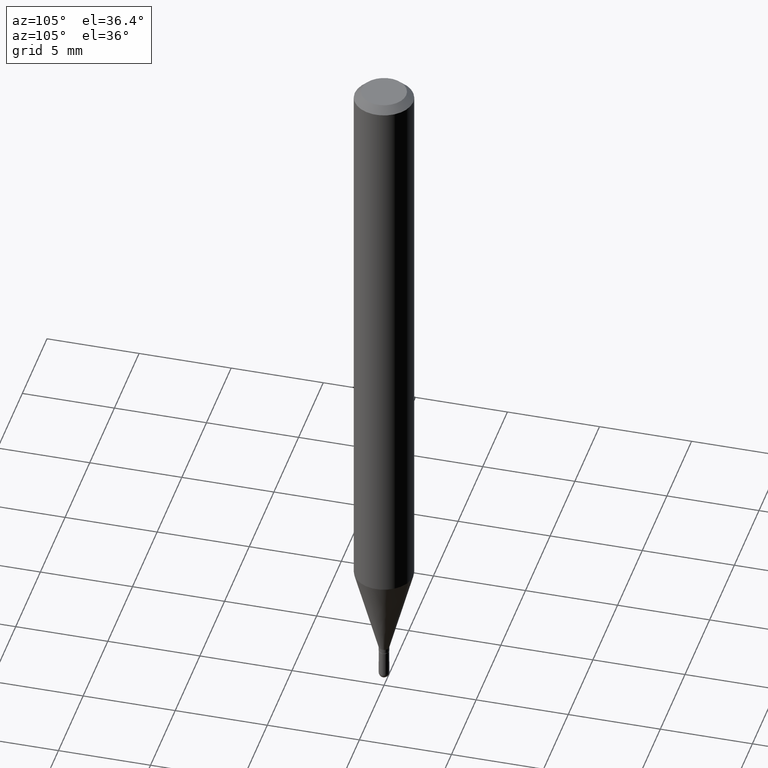
[diagram: clean part render]
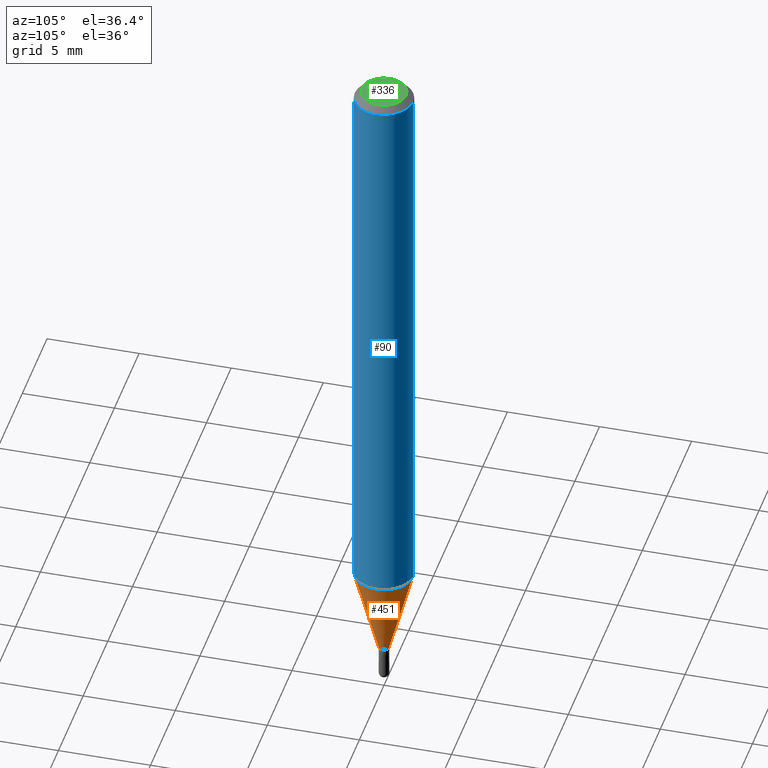
[diagram: same view with three faces highlighted in distinct colors, each labeled with its STEP entity id]
A machine part, auxiliary view with three faces highlighted in distinct colors.
Their STEP definitions:

[orange] entity #451 — the highlighted conical surface has half-angle 15 deg.
#10 = AXIS2_PLACEMENT_3D ( 'NONE', #285, #127, #488 ) ;
#12 = CARTESIAN_POINT ( 'NONE',  ( -7.681258945451356721E-17, -0.01100000000000489475, -1.424000000000000155 ) ) ;
#15 = CARTESIAN_POINT ( 'NONE',  ( 3.482338406495332832E-29, -4.971882563504380638E-15, -1.424000000000000155 ) ) ;
#17 = DIRECTION ( 'NONE',  ( -2.445462364111890734E-29, 3.491490564258693364E-15, 1.000000000000000000 ) ) ;
#78 = CARTESIAN_POINT ( 'NONE',  ( -7.681258945451356721E-17, -0.01100000000000489475, -1.424000000000000155 ) ) ;
#79 = ORIENTED_EDGE ( 'NONE', *, *, #453, .T. ) ;
#80 = VERTEX_POINT ( 'NONE', #490 ) ;
#89 = CARTESIAN_POINT ( 'NONE',  ( 2.611244553918690977E-16, 0.01099999999999494958, -1.424000000000000155 ) ) ;
#92 = CONICAL_SURFACE ( 'NONE', #506, 0.01099999999999992130, 0.2617993877991502960 ) ;
#95 = DIRECTION ( 'NONE',  ( -6.982962677686266711E-15, -1.000000000000000000, 0.000000000000000000 ) ) ;
#109 = DIRECTION ( 'NONE',  ( 1.839019923739601104E-15, 0.2588190451025250693, 0.9659258262890670910 ) ) ;
#113 = ORIENTED_EDGE ( 'NONE', *, *, #194, .T. ) ;
#127 = DIRECTION ( 'NONE',  ( -2.445462364111890734E-29, 3.491490564258693364E-15, 1.000000000000000000 ) ) ;
#135 = FACE_OUTER_BOUND ( 'NONE', #439, .T. ) ;
#143 = AXIS2_PLACEMENT_3D ( 'NONE', #15, #354, #362 ) ;
#160 = CIRCLE ( 'NONE', #10, 0.06250000000000000000 ) ;
#161 = ORIENTED_EDGE ( 'NONE', *, *, #477, .F. ) ;
#175 = CIRCLE ( 'NONE', #143, 0.01099999999999992130 ) ;
#194 = EDGE_CURVE ( 'NONE', #396, #80, #328, .T. ) ;
#225 = VERTEX_POINT ( 'NONE', #78 ) ;
#240 = VERTEX_POINT ( 'NONE', #263 ) ;
#263 = CARTESIAN_POINT ( 'NONE',  ( -4.364351673553613969E-16, -0.06250000000000428824, -1.231799383410203230 ) ) ;
#268 = ORIENTED_EDGE ( 'NONE', *, *, #441, .F. ) ;
#269 = CARTESIAN_POINT ( 'NONE',  ( 7.815970093364526973E-17, 0.01099999999999494958, -1.424000000000000155 ) ) ;
#285 = CARTESIAN_POINT ( 'NONE',  ( 3.012319032265885643E-29, -4.300815924236401857E-15, -1.231799383410203452 ) ) ;
#319 = DIRECTION ( 'NONE',  ( -1.807323732225330928E-15, -0.2588190451025182970, 0.9659258262890689783 ) ) ;
#328 = LINE ( 'NONE', #269, #496 ) ;
#354 = DIRECTION ( 'NONE',  ( -2.445462364111890734E-29, 3.491490564258693364E-15, 1.000000000000000000 ) ) ;
#362 = DIRECTION ( 'NONE',  ( -6.982962677686266711E-15, -1.000000000000000000, 0.000000000000000000 ) ) ;
#365 = LINE ( 'NONE', #12, #430 ) ;
#396 = VERTEX_POINT ( 'NONE', #89 ) ;
#430 = VECTOR ( 'NONE', #319, 39.37007874015748143 ) ;
#439 = EDGE_LOOP ( 'NONE', ( #79, #113, #268, #161 ) ) ;
#441 = EDGE_CURVE ( 'NONE', #240, #80, #160, .T. ) ;
#451 = ADVANCED_FACE ( 'NONE', ( #135 ), #92, .T. ) ;
#453 = EDGE_CURVE ( 'NONE', #225, #396, #175, .T. ) ;
#477 = EDGE_CURVE ( 'NONE', #225, #240, #365, .T. ) ;
#485 = CARTESIAN_POINT ( 'NONE',  ( 3.482338406495332832E-29, -4.971882563504380638E-15, -1.424000000000000155 ) ) ;
#488 = DIRECTION ( 'NONE',  ( -6.982962677686265922E-15, -1.000000000000000000, 4.370956789862821150E-15 ) ) ;
#490 = CARTESIAN_POINT ( 'NONE',  ( 4.440892098500924943E-16, 0.06249999999999567013, -1.231799383410203674 ) ) ;
#496 = VECTOR ( 'NONE', #109, 39.37007874015748143 ) ;
#506 = AXIS2_PLACEMENT_3D ( 'NONE', #485, #17, #95 ) ;

[blue] entity #90 — the highlighted cylindrical surface (edge-blend (fillet) strip) has radius 1.5875 mm, axis along (-0, 0, 1).
#10 = AXIS2_PLACEMENT_3D ( 'NONE', #285, #127, #488 ) ;
#65 = DIRECTION ( 'NONE',  ( -6.982962677686265922E-15, -1.000000000000000000, 3.491490564258692970E-15 ) ) ;
#66 = EDGE_CURVE ( 'NONE', #240, #512, #217, .T. ) ;
#73 = DIRECTION ( 'NONE',  ( -2.445462364111890454E-29, 3.491490564258693759E-15, 1.000000000000000000 ) ) ;
#76 = VECTOR ( 'NONE', #73, 39.37007874015748143 ) ;
#80 = VERTEX_POINT ( 'NONE', #490 ) ;
#90 = ADVANCED_FACE ( 'NONE', ( #492 ), #415, .T. ) ;
#91 = AXIS2_PLACEMENT_3D ( 'NONE', #344, #153, #265 ) ;
#98 = CARTESIAN_POINT ( 'NONE',  ( -4.364351673553916201E-16, -0.06250000000000000000, 2.182181602661683106E-16 ) ) ;
#114 = CARTESIAN_POINT ( 'NONE',  ( 4.440892098500928887E-16, 0.06249999999999995143, -0.01499999999999997863 ) ) ;
#118 = AXIS2_PLACEMENT_3D ( 'NONE', #411, #413, #65 ) ;
#127 = DIRECTION ( 'NONE',  ( -2.445462364111890734E-29, 3.491490564258693364E-15, 1.000000000000000000 ) ) ;
#153 = DIRECTION ( 'NONE',  ( -2.445462364111890734E-29, 3.491490564258693364E-15, 1.000000000000000000 ) ) ;
#160 = CIRCLE ( 'NONE', #10, 0.06250000000000000000 ) ;
#169 = ORIENTED_EDGE ( 'NONE', *, *, #441, .T. ) ;
#176 = DIRECTION ( 'NONE',  ( -2.445462364111890454E-29, 3.491490564258693759E-15, 1.000000000000000000 ) ) ;
#206 = EDGE_CURVE ( 'NONE', #512, #271, #373, .T. ) ;
#217 = LINE ( 'NONE', #98, #261 ) ;
#230 = EDGE_CURVE ( 'NONE', #80, #271, #507, .T. ) ;
#240 = VERTEX_POINT ( 'NONE', #263 ) ;
#261 = VECTOR ( 'NONE', #176, 39.37007874015748143 ) ;
#263 = CARTESIAN_POINT ( 'NONE',  ( -4.364351673553613969E-16, -0.06250000000000428824, -1.231799383410203230 ) ) ;
#265 = DIRECTION ( 'NONE',  ( -6.982962677686265922E-15, -1.000000000000000000, 3.483106191921935554E-15 ) ) ;
#271 = VERTEX_POINT ( 'NONE', #114 ) ;
#285 = CARTESIAN_POINT ( 'NONE',  ( 3.012319032265885643E-29, -4.300815924236401857E-15, -1.231799383410203452 ) ) ;
#309 = ORIENTED_EDGE ( 'NONE', *, *, #66, .F. ) ;
#344 = CARTESIAN_POINT ( 'NONE',  ( 3.668193546167777772E-31, -5.237235846387957191E-17, -0.01499999999999976179 ) ) ;
#373 = CIRCLE ( 'NONE', #91, 0.06250000000000000000 ) ;
#400 = EDGE_LOOP ( 'NONE', ( #169, #429, #484, #309 ) ) ;
#411 = CARTESIAN_POINT ( 'NONE',  ( 0.000000000000000000, 0.000000000000000000, 0.000000000000000000 ) ) ;
#413 = DIRECTION ( 'NONE',  ( -2.445462364111890734E-29, 3.491490564258693364E-15, 1.000000000000000000 ) ) ;
#415 = CYLINDRICAL_SURFACE ( 'NONE', #118, 0.06250000000000000000 ) ;
#429 = ORIENTED_EDGE ( 'NONE', *, *, #230, .T. ) ;
#441 = EDGE_CURVE ( 'NONE', #240, #80, #160, .T. ) ;
#449 = CARTESIAN_POINT ( 'NONE',  ( -4.364351673553912750E-16, -0.06250000000000005551, -0.01499999999999954321 ) ) ;
#484 = ORIENTED_EDGE ( 'NONE', *, *, #206, .F. ) ;
#488 = DIRECTION ( 'NONE',  ( -6.982962677686265922E-15, -1.000000000000000000, 4.370956789862821150E-15 ) ) ;
#490 = CARTESIAN_POINT ( 'NONE',  ( 4.440892098500924943E-16, 0.06249999999999567013, -1.231799383410203674 ) ) ;
#492 = FACE_OUTER_BOUND ( 'NONE', #400, .T. ) ;
#499 = CARTESIAN_POINT ( 'NONE',  ( 4.440892098500625669E-16, 0.06250000000000000000, -2.182181602661683106E-16 ) ) ;
#507 = LINE ( 'NONE', #499, #76 ) ;
#512 = VERTEX_POINT ( 'NONE', #449 ) ;

[green] entity #336 — the highlighted planar face has unit normal (0, -0, -1).
#30 = ORIENTED_EDGE ( 'NONE', *, *, #387, .T. ) ;
#67 = CARTESIAN_POINT ( 'NONE',  ( -3.773273898774340269E-16, -0.04749999999999999362, 4.053348826974133585E-16 ) ) ;
#119 = VERTEX_POINT ( 'NONE', #67 ) ;
#125 = CIRCLE ( 'NONE', #489, 0.04749999999999999362 ) ;
#147 = FACE_OUTER_BOUND ( 'NONE', #461, .T. ) ;
#162 = EDGE_CURVE ( 'NONE', #281, #119, #278, .T. ) ;
#200 = CARTESIAN_POINT ( 'NONE',  ( -5.856615339447773743E-45, 8.361738661883173652E-31, 2.394890808951254395E-16 ) ) ;
#204 = AXIS2_PLACEMENT_3D ( 'NONE', #418, #330, #379 ) ;
#278 = CIRCLE ( 'NONE', #204, 0.04749999999999999362 ) ;
#281 = VERTEX_POINT ( 'NONE', #386 ) ;
#306 = DIRECTION ( 'NONE',  ( 2.445462364111890454E-29, -3.491490564258693759E-15, -1.000000000000000000 ) ) ;
#330 = DIRECTION ( 'NONE',  ( -2.445462364111890734E-29, 3.491490564258693364E-15, 1.000000000000000000 ) ) ;
#336 = ADVANCED_FACE ( 'NONE', ( #147 ), #460, .F. ) ;
#379 = DIRECTION ( 'NONE',  ( -6.982962677686266711E-15, -1.000000000000000000, 3.491490564258693364E-15 ) ) ;
#386 = CARTESIAN_POINT ( 'NONE',  ( 3.840629472727447874E-16, 0.04749999999999999362, 7.364327909283752044E-17 ) ) ;
#387 = EDGE_CURVE ( 'NONE', #119, #281, #125, .T. ) ;
#405 = DIRECTION ( 'NONE',  ( -6.982962677686266711E-15, -1.000000000000000000, 3.491490564258693364E-15 ) ) ;
#418 = CARTESIAN_POINT ( 'NONE',  ( -5.856615339447773743E-45, 8.361738661883173652E-31, 2.394890808951254395E-16 ) ) ;
#428 = CARTESIAN_POINT ( 'NONE',  ( 3.316907271900976096E-16, 0.04749999999999999362, -4.610126135472521161E-17 ) ) ;
#431 = DIRECTION ( 'NONE',  ( 6.982962677686265922E-15, 1.000000000000000000, -3.491490564258693759E-15 ) ) ;
#445 = AXIS2_PLACEMENT_3D ( 'NONE', #428, #306, #431 ) ;
#460 = PLANE ( 'NONE',  #445 ) ;
#461 = EDGE_LOOP ( 'NONE', ( #469, #30 ) ) ;
#469 = ORIENTED_EDGE ( 'NONE', *, *, #162, .T. ) ;
#479 = DIRECTION ( 'NONE',  ( -2.445462364111890734E-29, 3.491490564258693364E-15, 1.000000000000000000 ) ) ;
#489 = AXIS2_PLACEMENT_3D ( 'NONE', #200, #479, #405 ) ;